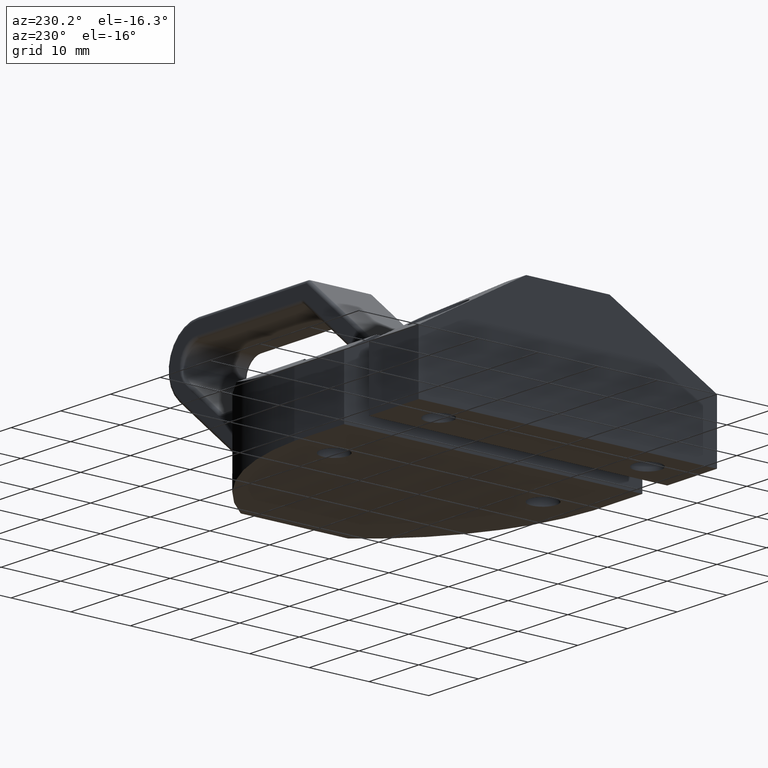
[diagram: clean part render]
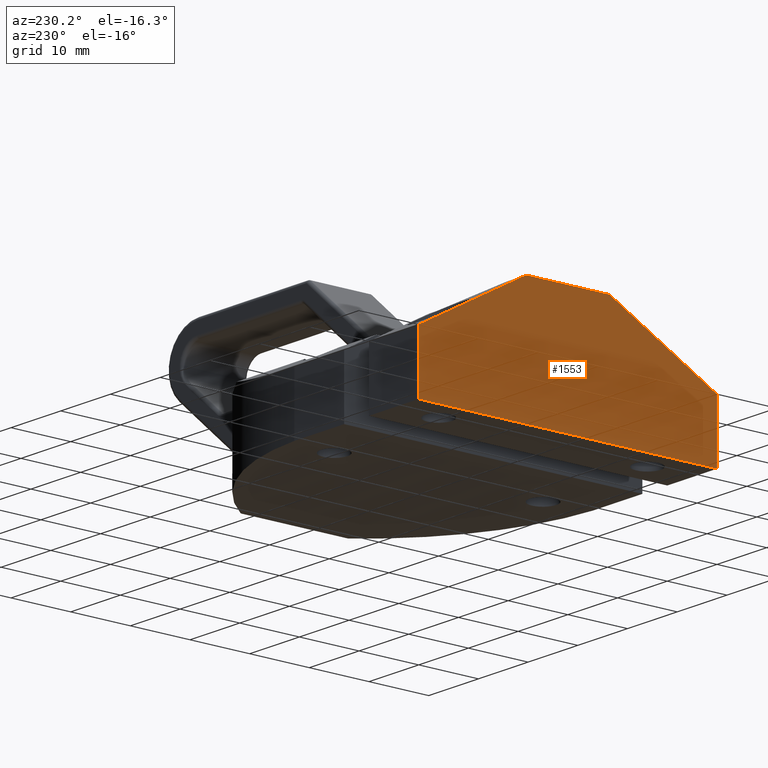
[diagram: same view with one face highlighted and labeled with its STEP entity id]
A machine part, auxiliary view. The second image highlights one B-rep face of the part: STEP entity #1553.
In plain terms, the highlighted planar face has unit normal (1, 0, 0).
Its self-contained STEP definition (entity closure, byte-faithful):
#55=PLANE('',#1683);
#114=FACE_OUTER_BOUND('',#210,.T.);
#210=EDGE_LOOP('',(#1122,#1123,#1124,#1125,#1126,#1127));
#304=LINE('',#2417,#438);
#307=LINE('',#2423,#441);
#310=LINE('',#2429,#444);
#334=LINE('',#2475,#468);
#336=LINE('',#2479,#470);
#338=LINE('',#2482,#472);
#438=VECTOR('',#1897,1000.);
#441=VECTOR('',#1902,1000.);
#444=VECTOR('',#1907,1000.);
#468=VECTOR('',#1941,1000.);
#470=VECTOR('',#1945,1000.);
#472=VECTOR('',#1949,1000.);
#672=VERTEX_POINT('',#2414);
#673=VERTEX_POINT('',#2416);
#675=VERTEX_POINT('',#2422);
#677=VERTEX_POINT('',#2428);
#694=VERTEX_POINT('',#2474);
#695=VERTEX_POINT('',#2478);
#826=EDGE_CURVE('',#672,#673,#304,.T.);
#829=EDGE_CURVE('',#673,#675,#307,.T.);
#832=EDGE_CURVE('',#675,#677,#310,.T.);
#856=EDGE_CURVE('',#677,#694,#334,.T.);
#858=EDGE_CURVE('',#694,#695,#336,.T.);
#860=EDGE_CURVE('',#695,#672,#338,.T.);
#1122=ORIENTED_EDGE('',*,*,#856,.F.);
#1123=ORIENTED_EDGE('',*,*,#832,.F.);
#1124=ORIENTED_EDGE('',*,*,#829,.F.);
#1125=ORIENTED_EDGE('',*,*,#826,.F.);
#1126=ORIENTED_EDGE('',*,*,#860,.F.);
#1127=ORIENTED_EDGE('',*,*,#858,.F.);
#1553=ADVANCED_FACE('',(#114),#55,.F.);
#1683=AXIS2_PLACEMENT_3D('',#2483,#1950,#1951);
#1897=DIRECTION('',(0.,-0.874157276121538,0.485642931178632));
#1902=DIRECTION('',(0.,-1.,0.));
#1907=DIRECTION('',(0.,-0.874157276121538,-0.485642931178632));
#1941=DIRECTION('',(0.,0.,-1.));
#1945=DIRECTION('',(0.,1.,0.));
#1949=DIRECTION('',(0.,0.,1.));
#1950=DIRECTION('center_axis',(1.,0.,0.));
#1951=DIRECTION('ref_axis',(0.,0.,-1.));
#2414=CARTESIAN_POINT('',(0.,25.,10.));
#2416=CARTESIAN_POINT('',(0.,7.,20.));
#2417=CARTESIAN_POINT('',(0.,25.,10.));
#2422=CARTESIAN_POINT('',(0.,-7.,20.));
#2423=CARTESIAN_POINT('',(0.,7.,20.));
#2428=CARTESIAN_POINT('',(0.,-25.,10.));
#2429=CARTESIAN_POINT('',(0.,-7.,20.));
#2474=CARTESIAN_POINT('',(0.,-25.,0.));
#2475=CARTESIAN_POINT('',(0.,-25.,10.));
#2478=CARTESIAN_POINT('',(0.,25.,0.));
#2479=CARTESIAN_POINT('',(0.,-25.,0.));
#2482=CARTESIAN_POINT('',(0.,25.,0.));
#2483=CARTESIAN_POINT('Origin',(0.,-25.,0.));